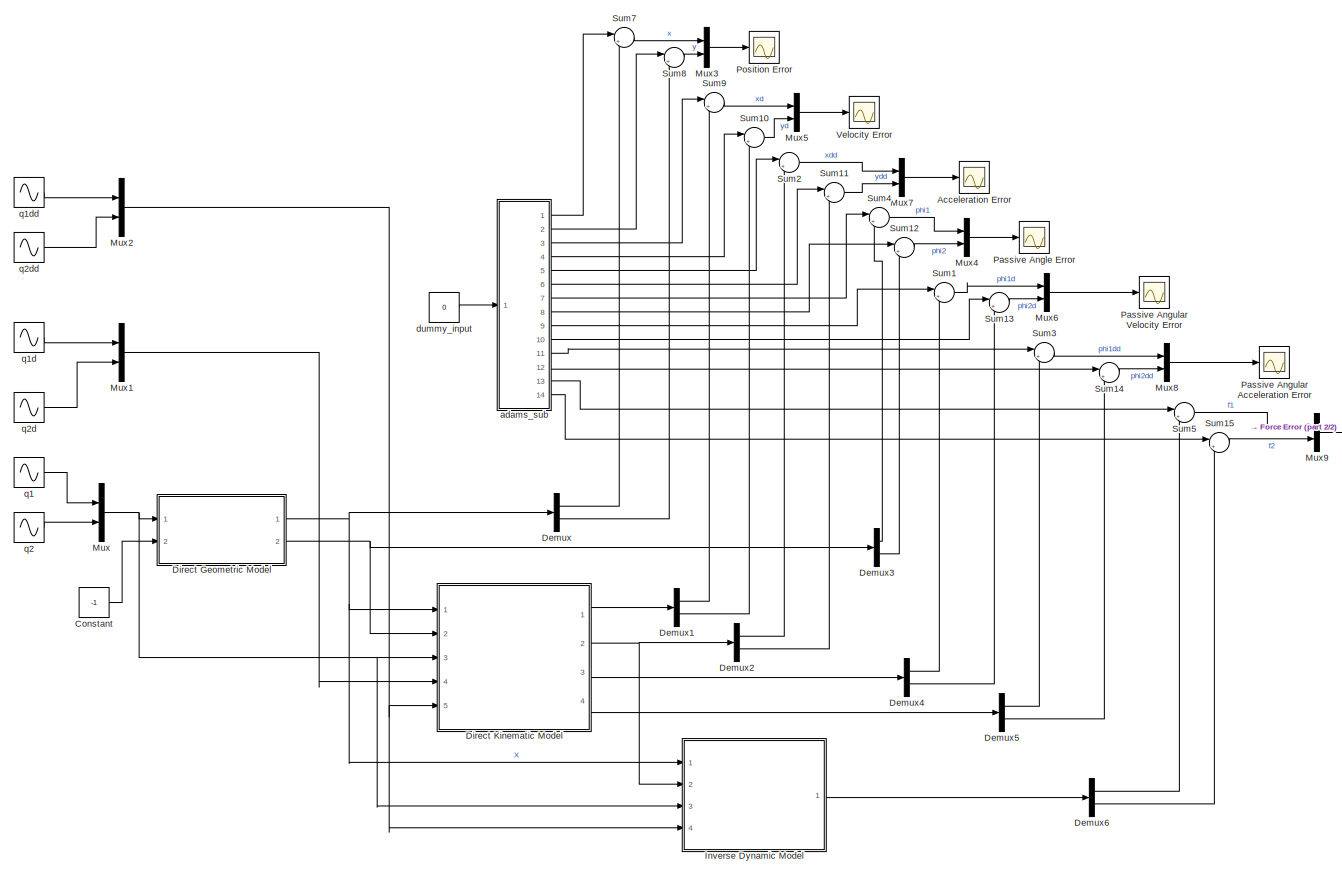
[diagram: root canvas - part 1/2, most of the canvas]
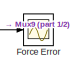
[diagram: root canvas - part 2/2, middle right region]
MODEL slx_ea97dbc30092
KIND model
CONFIG AbsTol = auto
CONFIG EnableMultiTasking = off
CONFIG FixedStep = auto
CONFIG MaxStep = auto
CONFIG MinStep = auto
CONFIG RelTol = 1e-3
CONFIG SampleTimeConstraint = Unconstrained
CONFIG Solver = VariableStepAuto
CONFIG SolverName = VariableStepAuto
CONFIG StartTime = 0.0
CONFIG StopTime = 3
BLOCK [Scope] Acceleration Error
  Floating = off
  NumInputPorts = 1
  Ports = [1]
  ScopeSpecificationString = Simulink.scopes.TimeScopeBlockCfg('CurrentConfiguration', extmgr.ConfigurationSet(extmgr.Configuration('Core','General UI',true),extmgr.Configuration('Core','Source UI',true),extmgr.Configuration('Sources','WiredSimulink',true,'DataLoggingVariableName','ScopeData9'),extmgr.Configuration('Visuals','Time Domain',true,'SerializedDisplays',{struct('MinYLimReal','-0.01587','MaxYLimReal','0.1428','YLabe...<+1544ch>
BLOCK [Constant] Constant
  Value = -1
BLOCK [Demux] Demux
  DisplayOption = bar
  Outputs = 2
  Ports = [1, 2]
BLOCK [Demux] Demux1
  DisplayOption = bar
  Outputs = 2
  Ports = [1, 2]
BLOCK [Demux] Demux2
  DisplayOption = bar
  Outputs = 2
  Ports = [1, 2]
BLOCK [Demux] Demux3
  DisplayOption = bar
  Outputs = 2
  Ports = [1, 2]
BLOCK [Demux] Demux4
  DisplayOption = bar
  Outputs = 2
  Ports = [1, 2]
BLOCK [Demux] Demux5
  DisplayOption = bar
  Outputs = 2
  Ports = [1, 2]
BLOCK [Demux] Demux6
  DisplayOption = bar
  Outputs = 2
  Ports = [1, 2]
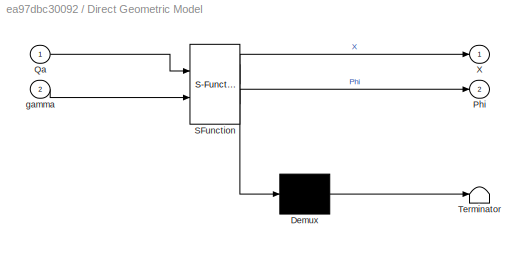
BLOCK [SubSystem] Direct Geometric Model
  ErrorFcn = Stateflow.Translate.translate
  PermitHierarchicalResolution = ExplicitOnly
  Ports = [2, 2]
  RequestExecContextInheritance = off
  SFBlockType = MATLAB Function
  TreatAsAtomicUnit = on
BLOCK [Demux] Direct Geometric Model/ Demux 
  Outputs = 1
  Ports = [1, 1]
BLOCK [S-Function] Direct Geometric Model/ SFunction 
  EnableBusSupport = on
  FunctionName = sf_sfun
  PortCounts = [2 3]
  Ports = [2, 3]
  SFcnIsStateOwnerBlock = off
  SFunctionDeploymentMode = off
  Tag = Stateflow S-Function 2
BLOCK [Terminator] Direct Geometric Model/ Terminator 
BLOCK [Outport] Direct Geometric Model/Phi
  IconDisplay = Port number
  Port = 2
  VectorParamsAs1DForOutWhenUnconnected = off
BLOCK [Inport] Direct Geometric Model/Qa
  IconDisplay = Port number
BLOCK [Outport] Direct Geometric Model/X
  IconDisplay = Port number
  VectorParamsAs1DForOutWhenUnconnected = off
BLOCK [Inport] Direct Geometric Model/gamma
  IconDisplay = Port number
  Port = 2
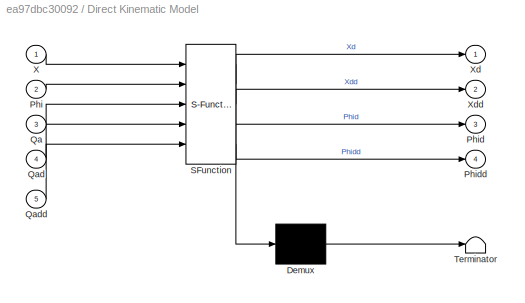
BLOCK [SubSystem] Direct Kinematic Model
  ErrorFcn = Stateflow.Translate.translate
  PermitHierarchicalResolution = ExplicitOnly
  Ports = [5, 4]
  RequestExecContextInheritance = off
  SFBlockType = MATLAB Function
  TreatAsAtomicUnit = on
BLOCK [Demux] Direct Kinematic Model/ Demux 
  Outputs = 1
  Ports = [1, 1]
BLOCK [S-Function] Direct Kinematic Model/ SFunction 
  EnableBusSupport = on
  FunctionName = sf_sfun
  PortCounts = [5 5]
  Ports = [5, 5]
  SFcnIsStateOwnerBlock = off
  SFunctionDeploymentMode = off
  Tag = Stateflow S-Function 1
BLOCK [Terminator] Direct Kinematic Model/ Terminator 
BLOCK [Inport] Direct Kinematic Model/Phi
  IconDisplay = Port number
  Port = 2
BLOCK [Outport] Direct Kinematic Model/Phid
  IconDisplay = Port number
  Port = 3
  VectorParamsAs1DForOutWhenUnconnected = off
BLOCK [Outport] Direct Kinematic Model/Phidd
  IconDisplay = Port number
  Port = 4
  VectorParamsAs1DForOutWhenUnconnected = off
BLOCK [Inport] Direct Kinematic Model/Qa
  IconDisplay = Port number
  Port = 3
BLOCK [Inport] Direct Kinematic Model/Qad
  IconDisplay = Port number
  Port = 4
BLOCK [Inport] Direct Kinematic Model/Qadd
  IconDisplay = Port number
  Port = 5
BLOCK [Inport] Direct Kinematic Model/X
  IconDisplay = Port number
BLOCK [Outport] Direct Kinematic Model/Xd
  IconDisplay = Port number
  VectorParamsAs1DForOutWhenUnconnected = off
BLOCK [Outport] Direct Kinematic Model/Xdd
  IconDisplay = Port number
  Port = 2
  VectorParamsAs1DForOutWhenUnconnected = off
BLOCK [Scope] Force Error
  Floating = off
  NumInputPorts = 1
  Ports = [1]
  ScopeSpecificationString = Simulink.scopes.TimeScopeBlockCfg('CurrentConfiguration', extmgr.ConfigurationSet(extmgr.Configuration('Core','General UI',true),extmgr.Configuration('Core','Source UI',true),extmgr.Configuration('Sources','WiredSimulink',true),extmgr.Configuration('Visuals','Time Domain',true,'SerializedDisplays',{struct('MinYLimReal','-0.00011','MaxYLimReal','0.0001','YLabelReal','Force (N)','MinYLimMag','0.0000...<+1467ch>
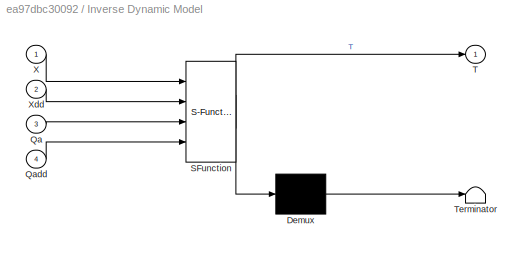
BLOCK [SubSystem] Inverse Dynamic Model
  ErrorFcn = Stateflow.Translate.translate
  PermitHierarchicalResolution = ExplicitOnly
  Ports = [4, 1]
  RequestExecContextInheritance = off
  SFBlockType = MATLAB Function
  TreatAsAtomicUnit = on
BLOCK [Demux] Inverse Dynamic Model/ Demux 
  Outputs = 1
  Ports = [1, 1]
BLOCK [S-Function] Inverse Dynamic Model/ SFunction 
  EnableBusSupport = on
  FunctionName = sf_sfun
  PortCounts = [4 2]
  Ports = [4, 2]
  SFcnIsStateOwnerBlock = off
  SFunctionDeploymentMode = off
  Tag = Stateflow S-Function 3
BLOCK [Terminator] Inverse Dynamic Model/ Terminator 
BLOCK [Inport] Inverse Dynamic Model/Qa
  IconDisplay = Port number
  Port = 3
BLOCK [Inport] Inverse Dynamic Model/Qadd
  IconDisplay = Port number
  Port = 4
BLOCK [Outport] Inverse Dynamic Model/T
  IconDisplay = Port number
BLOCK [Inport] Inverse Dynamic Model/X
  IconDisplay = Port number
BLOCK [Inport] Inverse Dynamic Model/Xdd
  IconDisplay = Port number
  Port = 2
BLOCK [Mux] Mux
  DisplayOption = bar
  Inputs = 2
  Ports = [2, 1]
BLOCK [Mux] Mux1
  DisplayOption = bar
  Inputs = 2
  Ports = [2, 1]
BLOCK [Mux] Mux2
  DisplayOption = bar
  Inputs = 2
  Ports = [2, 1]
BLOCK [Mux] Mux3
  DisplayOption = bar
  Inputs = 2
  Ports = [2, 1]
BLOCK [Mux] Mux4
  DisplayOption = bar
  Inputs = 2
  Ports = [2, 1]
BLOCK [Mux] Mux5
  DisplayOption = bar
  Inputs = 2
  Ports = [2, 1]
BLOCK [Mux] Mux6
  DisplayOption = bar
  Inputs = 2
  Ports = [2, 1]
BLOCK [Mux] Mux7
  DisplayOption = bar
  Inputs = 2
  Ports = [2, 1]
BLOCK [Mux] Mux8
  DisplayOption = bar
  Inputs = 2
  Ports = [2, 1]
BLOCK [Mux] Mux9
  DisplayOption = bar
  Inputs = 2
  Ports = [2, 1]
BLOCK [Scope] Passive Angle Error
  Floating = off
  NumInputPorts = 1
  Ports = [1]
  ScopeSpecificationString = Simulink.scopes.TimeScopeBlockCfg('CurrentConfiguration', extmgr.ConfigurationSet(extmgr.Configuration('Core','General UI',true),extmgr.Configuration('Core','Source UI',true),extmgr.Configuration('Sources','WiredSimulink',true,'DataLoggingVariableName','ScopeData16'),extmgr.Configuration('Visuals','Time Domain',true,'SerializedDisplays',{struct('MinYLimReal','-0.00012','MaxYLimReal','0.00012','YLa...<+1533ch>
BLOCK [Scope] Passive Angular Acceleration Error
  Floating = off
  NumInputPorts = 1
  Ports = [1]
  ScopeSpecificationString = Simulink.scopes.TimeScopeBlockCfg('CurrentConfiguration', extmgr.ConfigurationSet(extmgr.Configuration('Core','General UI',true),extmgr.Configuration('Core','Source UI',true),extmgr.Configuration('Sources','WiredSimulink',true,'DataLoggingVariableName','ScopeData12'),extmgr.Configuration('Visuals','Time Domain',true,'SerializedDisplays',{struct('MinYLimReal','-0.00004','MaxYLimReal','0.00004','YLa...<+1607ch>
BLOCK [Scope] Passive Angular Velocity Error
  Floating = off
  NumInputPorts = 1
  Ports = [1]
  ScopeSpecificationString = Simulink.scopes.TimeScopeBlockCfg('CurrentConfiguration', extmgr.ConfigurationSet(extmgr.Configuration('Core','General UI',true),extmgr.Configuration('Core','Source UI',true),extmgr.Configuration('Sources','WiredSimulink',true,'DataLoggingVariableName','ScopeData6'),extmgr.Configuration('Visuals','Time Domain',true,'SerializedDisplays',{struct('MinYLimReal','-0.000019','MaxYLimReal','0.000019','YL...<+1578ch>
BLOCK [Scope] Position Error
  Floating = off
  NumInputPorts = 1
  Ports = [1]
  ScopeSpecificationString = Simulink.scopes.TimeScopeBlockCfg('CurrentConfiguration', extmgr.ConfigurationSet(extmgr.Configuration('Core','General UI',true),extmgr.Configuration('Core','Source UI',true),extmgr.Configuration('Sources','WiredSimulink',true,'DataLoggingVariableName','ScopeData15'),extmgr.Configuration('Visuals','Time Domain',true,'TimeAxisLabels','All','SerializedDisplays',{struct('MinYLimReal','-0.06877','MaxY...<+1589ch>
BLOCK [Sum] Sum1
  IconShape = round
  InputSameDT = off
  Inputs = |+-
  OutDataTypeStr = Inherit: Inherit via internal rule
  Ports = [2, 1]
  SaturateOnIntegerOverflow = off
BLOCK [Sum] Sum10
  IconShape = round
  InputSameDT = off
  Inputs = |+-
  OutDataTypeStr = Inherit: Inherit via internal rule
  Ports = [2, 1]
  SaturateOnIntegerOverflow = off
BLOCK [Sum] Sum11
  IconShape = round
  InputSameDT = off
  Inputs = |+-
  OutDataTypeStr = Inherit: Inherit via internal rule
  Ports = [2, 1]
  SaturateOnIntegerOverflow = off
BLOCK [Sum] Sum12
  IconShape = round
  InputSameDT = off
  Inputs = |+-
  OutDataTypeStr = Inherit: Inherit via internal rule
  Ports = [2, 1]
  SaturateOnIntegerOverflow = off
BLOCK [Sum] Sum13
  IconShape = round
  InputSameDT = off
  Inputs = |+-
  OutDataTypeStr = Inherit: Inherit via internal rule
  Ports = [2, 1]
  SaturateOnIntegerOverflow = off
BLOCK [Sum] Sum14
  IconShape = round
  InputSameDT = off
  Inputs = |+-
  OutDataTypeStr = Inherit: Inherit via internal rule
  Ports = [2, 1]
  SaturateOnIntegerOverflow = off
BLOCK [Sum] Sum15
  IconShape = round
  InputSameDT = off
  Inputs = |+-
  OutDataTypeStr = Inherit: Inherit via internal rule
  Ports = [2, 1]
  SaturateOnIntegerOverflow = off
BLOCK [Sum] Sum2
  IconShape = round
  InputSameDT = off
  Inputs = |+-
  OutDataTypeStr = Inherit: Inherit via internal rule
  Ports = [2, 1]
  SaturateOnIntegerOverflow = off
BLOCK [Sum] Sum3
  IconShape = round
  InputSameDT = off
  Inputs = |+-
  OutDataTypeStr = Inherit: Inherit via internal rule
  Ports = [2, 1]
  SaturateOnIntegerOverflow = off
BLOCK [Sum] Sum4
  IconShape = round
  InputSameDT = off
  Inputs = |+-
  OutDataTypeStr = Inherit: Inherit via internal rule
  Ports = [2, 1]
  SaturateOnIntegerOverflow = off
BLOCK [Sum] Sum5
  IconShape = round
  InputSameDT = off
  Inputs = |+-
  OutDataTypeStr = Inherit: Inherit via internal rule
  Ports = [2, 1]
  SaturateOnIntegerOverflow = off
BLOCK [Sum] Sum7
  IconShape = round
  InputSameDT = off
  Inputs = |+-
  OutDataTypeStr = Inherit: Inherit via internal rule
  Ports = [2, 1]
  SaturateOnIntegerOverflow = off
BLOCK [Sum] Sum8
  IconShape = round
  InputSameDT = off
  Inputs = |+-
  OutDataTypeStr = Inherit: Inherit via internal rule
  Ports = [2, 1]
  SaturateOnIntegerOverflow = off
BLOCK [Sum] Sum9
  IconShape = round
  InputSameDT = off
  Inputs = |+-
  OutDataTypeStr = Inherit: Inherit via internal rule
  Ports = [2, 1]
  SaturateOnIntegerOverflow = off
BLOCK [Scope] Velocity Error
  Floating = off
  NumInputPorts = 1
  Ports = [1]
  ScopeSpecificationString = Simulink.scopes.TimeScopeBlockCfg('CurrentConfiguration', extmgr.ConfigurationSet(extmgr.Configuration('Core','General UI',true),extmgr.Configuration('Core','Source UI',true),extmgr.Configuration('Sources','WiredSimulink',true,'DataLoggingVariableName','ScopeData3'),extmgr.Configuration('Visuals','Time Domain',true,'TimeAxisLabels','All','SerializedDisplays',{struct('MinYLimReal','-0.000034','MaxY...<+1555ch>
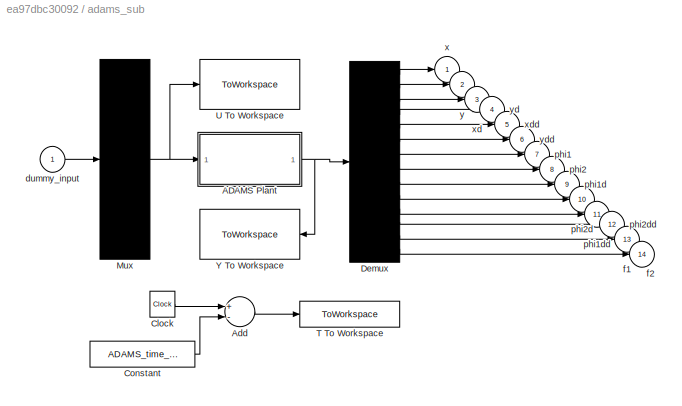
BLOCK [SubSystem] adams_sub
  Ports = [1, 14]
  RequestExecContextInheritance = off
  ShowPortLabels = none
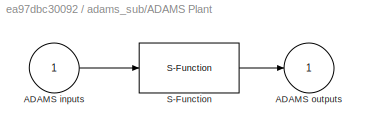
BLOCK [SubSystem] adams_sub/ADAMS Plant
  InitFcn = clear mex
  LoadFcn = %check based on dialog box setting for when setting by popup menu                                             \nif exist('ADAMS_solver_type')                                                                                 \n  if strcmp(ADAMS_solver_type,'C++')                                                                          \n    set_param(gcb,'exetyp','C++');                                 ...<+4486ch>
  OpenFcn = open_system(gcb,'mask')                                                                                                                          \nif not(exist('set_some_params_states'))                                                                                                          \n                                                                                                            ...<+625ch>
  Ports = [1, 1]
  RequestExecContextInheritance = off
BLOCK [Inport] adams_sub/ADAMS Plant/ADAMS inputs
  IconDisplay = Port number
BLOCK [Outport] adams_sub/ADAMS Plant/ADAMS outputs
  IconDisplay = Port number
  InitialOutput = 0
BLOCK [S-Function] adams_sub/ADAMS Plant/S-Function
  EnableBusSupport = off
  FunctionName = adams_plant
  Parameters = exevie,exesol,stat,outfil,nampre,o_rate,nam_in,namout,dft,modsim,modani,dt_out,inicmd,exetyp,comtyp,ada_host, workdir,pin_interp_order,pout_extrap_order,pin_extrap_order,pout_interp_order,simulink_lead_cosim,time_offset
  Ports = [1, 1]
  SFcnIsStateOwnerBlock = off
  SFunctionDeploymentMode = off
  StopFcn = clear mex
BLOCK [Sum] adams_sub/Add
  InputSameDT = off
  Inputs = +-
  OutDataTypeStr = Inherit: Inherit via internal rule
  Ports = [2, 1]
  SaturateOnIntegerOverflow = off
BLOCK [Clock] adams_sub/Clock
BLOCK [Constant] adams_sub/Constant
  Value = ADAMS_time_offset
BLOCK [Demux] adams_sub/Demux
  Outputs = 14
  Ports = [1, 14]
BLOCK [Mux] adams_sub/Mux
  Inputs = 1
  Ports = [1, 1]
BLOCK [ToWorkspace] adams_sub/T To Workspace
  MaxDataPoints = 100000
  Ports = [1]
  VariableName = ADAMS_tout
BLOCK [ToWorkspace] adams_sub/U To Workspace
  MaxDataPoints = 100000
  Ports = [1]
  VariableName = ADAMS_uout
BLOCK [ToWorkspace] adams_sub/Y To Workspace
  MaxDataPoints = 100000
  Ports = [1]
  VariableName = ADAMS_yout
BLOCK [Inport] adams_sub/dummy_input
  IconDisplay = Port number
BLOCK [Outport] adams_sub/f1    
  IconDisplay = Port number
  Port = 13
BLOCK [Outport] adams_sub/f2    
  IconDisplay = Port number
  Port = 14
BLOCK [Outport] adams_sub/phi1  
  IconDisplay = Port number
  Port = 7
BLOCK [Outport] adams_sub/phi1d 
  IconDisplay = Port number
  Port = 9
BLOCK [Outport] adams_sub/phi1dd
  IconDisplay = Port number
  Port = 11
BLOCK [Outport] adams_sub/phi2  
  IconDisplay = Port number
  Port = 8
BLOCK [Outport] adams_sub/phi2d 
  IconDisplay = Port number
  Port = 10
BLOCK [Outport] adams_sub/phi2dd
  IconDisplay = Port number
  Port = 12
BLOCK [Outport] adams_sub/x     
  IconDisplay = Port number
BLOCK [Outport] adams_sub/xd    
  IconDisplay = Port number
  Port = 3
BLOCK [Outport] adams_sub/xdd   
  IconDisplay = Port number
  Port = 5
BLOCK [Outport] adams_sub/y     
  IconDisplay = Port number
  Port = 2
BLOCK [Outport] adams_sub/yd    
  IconDisplay = Port number
  Port = 4
BLOCK [Outport] adams_sub/ydd   
  IconDisplay = Port number
  Port = 6
BLOCK [Constant] dummy_input
  Value = 0
BLOCK [Sin] q1
  Amplitude = 0.1
  Ports = [0, 1]
  SampleTime = 0
BLOCK [Sin] q1d
  Amplitude = 0.1
  Phase = +pi/2
  Ports = [0, 1]
  SampleTime = 0
BLOCK [Sin] q1dd
  Amplitude = 0.1
  Phase = +pi
  Ports = [0, 1]
  SampleTime = 0
BLOCK [Sin] q2
  Amplitude = -0.1
  Ports = [0, 1]
  SampleTime = 0
BLOCK [Sin] q2d
  Amplitude = -0.1
  Phase = pi/2
  Ports = [0, 1]
  SampleTime = 0
BLOCK [Sin] q2dd
  Amplitude = -0.1
  Phase = +pi
  Ports = [0, 1]
  SampleTime = 0
LINE Constant:1 -> Direct Geometric Model:2
LINE Demux1:1 -> Sum9:2
LINE Demux1:2 -> Sum10:2
LINE Demux2:1 -> Sum2:2
LINE Demux2:2 -> Sum11:2
LINE Demux3:1 -> Sum4:2
LINE Demux3:2 -> Sum12:2
LINE Demux4:1 -> Sum1:2
LINE Demux4:2 -> Sum13:2
LINE Demux5:1 -> Sum3:2
LINE Demux5:2 -> Sum14:2
LINE Demux6:1 -> Sum5:2
LINE Demux6:2 -> Sum15:2
LINE Demux:1 -> Sum7:2
LINE Demux:2 -> Sum8:2
NET Direct Geometric Model:1 -> Demux:1, Direct Kinematic Model:1, Inverse Dynamic Model:1
NET Direct Geometric Model:2 -> Demux3:1, Direct Kinematic Model:2
LINE Direct Kinematic Model:1 -> Demux1:1
NET Direct Kinematic Model:2 -> Demux2:1, Inverse Dynamic Model:2
LINE Direct Kinematic Model:3 -> Demux4:1
LINE Direct Kinematic Model:4 -> Demux5:1
LINE Inverse Dynamic Model:1 -> Demux6:1
LINE Mux1:1 -> Direct Kinematic Model:4
NET Mux2:1 -> Direct Kinematic Model:5, Inverse Dynamic Model:4
LINE Mux3:1 -> Position Error:1
LINE Mux4:1 -> Passive Angle Error:1
LINE Mux5:1 -> Velocity Error:1
LINE Mux6:1 -> Passive Angular Velocity Error:1
LINE Mux7:1 -> Acceleration Error:1
LINE Mux8:1 -> Passive Angular Acceleration Error:1
LINE Mux9:1 -> Force Error:1
NET Mux:1 -> Direct Geometric Model:1, Direct Kinematic Model:3, Inverse Dynamic Model:3
LINE Sum10:1 -> Mux5:2
LINE Sum11:1 -> Mux7:2
LINE Sum12:1 -> Mux4:2
LINE Sum13:1 -> Mux6:2
LINE Sum14:1 -> Mux8:2
LINE Sum15:1 -> Mux9:2
LINE Sum1:1 -> Mux6:1
LINE Sum2:1 -> Mux7:1
LINE Sum3:1 -> Mux8:1
LINE Sum4:1 -> Mux4:1
LINE Sum5:1 -> Mux9:1
LINE Sum7:1 -> Mux3:1
LINE Sum8:1 -> Mux3:2
LINE Sum9:1 -> Mux5:1
LINE adams_sub/ADAMS Plant/ADAMS inputs:1 -> adams_sub/ADAMS Plant/S-Function:1
LINE adams_sub/ADAMS Plant/S-Function:1 -> adams_sub/ADAMS Plant/ADAMS outputs:1
NET adams_sub/ADAMS Plant:1 -> adams_sub/Demux:1, adams_sub/Y To Workspace:1
LINE adams_sub/Add:1 -> adams_sub/T To Workspace:1
LINE adams_sub/Clock:1 -> adams_sub/Add:1
LINE adams_sub/Constant:1 -> adams_sub/Add:2
LINE adams_sub/Demux:1 -> adams_sub/x     :1
LINE adams_sub/Demux:10 -> adams_sub/phi2d :1
LINE adams_sub/Demux:11 -> adams_sub/phi1dd:1
LINE adams_sub/Demux:12 -> adams_sub/phi2dd:1
LINE adams_sub/Demux:13 -> adams_sub/f1    :1
LINE adams_sub/Demux:14 -> adams_sub/f2    :1
LINE adams_sub/Demux:2 -> adams_sub/y     :1
LINE adams_sub/Demux:3 -> adams_sub/xd    :1
LINE adams_sub/Demux:4 -> adams_sub/yd    :1
LINE adams_sub/Demux:5 -> adams_sub/xdd   :1
LINE adams_sub/Demux:6 -> adams_sub/ydd   :1
LINE adams_sub/Demux:7 -> adams_sub/phi1  :1
LINE adams_sub/Demux:8 -> adams_sub/phi2  :1
LINE adams_sub/Demux:9 -> adams_sub/phi1d :1
NET adams_sub/Mux:1 -> adams_sub/ADAMS Plant:1, adams_sub/U To Workspace:1
LINE adams_sub/dummy_input:1 -> adams_sub/Mux:1
LINE adams_sub:1 -> Sum7:1
LINE adams_sub:10 -> Sum13:1
LINE adams_sub:11 -> Sum3:1
LINE adams_sub:12 -> Sum14:1
LINE adams_sub:13 -> Sum5:1
LINE adams_sub:14 -> Sum15:1
LINE adams_sub:2 -> Sum8:1
LINE adams_sub:3 -> Sum9:1
LINE adams_sub:4 -> Sum10:1
LINE adams_sub:5 -> Sum2:1
LINE adams_sub:6 -> Sum11:1
LINE adams_sub:7 -> Sum4:1
LINE adams_sub:8 -> Sum12:1
LINE adams_sub:9 -> Sum1:1
LINE dummy_input:1 -> adams_sub:1
LINE q1:1 -> Mux:1
LINE q1d:1 -> Mux1:1
LINE q1dd:1 -> Mux2:1
LINE q2:1 -> Mux:2
LINE q2d:1 -> Mux1:2
LINE q2dd:1 -> Mux2:2
note: NET lines group one-source signal fan-out (src -> all destinations, sorted); 1:1 wires keep LINE
CHART Direct Kinematic Model states=1 transitions=1
  STATE_LABEL 'eML_blk_kernel()'
  STATE_LABEL 'SCRIPT:\nfunction [Xd, Xdd, Phid, Phidd]  = DKM(X,Phi,Qa,Qad,Qadd)\n    \n    %% Geometric parameters\n    d= 0.4;\n    l= 0.3606;\n    \n    % Extracting Parameters\n    x = X(1);\n    y = X(2);\n    phi1 = Phi(1);\n    phi2 = Phi(2);\n    q1 = Qa(1);\n    q2 = Qa(2);\n    q1d = Qad(1);\n    q2d = Qad(2);\n    \n    %% First derivative of X (Xd)\n    A = 2*[(x+d/2) (y-q1); (x-d/2) (y-q2)];\n    B = -2*[(y-q1) 0; 0 ...<+667ch>'
CHART Direct Geometric Model states=1 transitions=1
  STATE_LABEL 'eML_blk_kernel()'
  STATE_LABEL 'SCRIPT:\nfunction [X, Phi] = DGM(Qa,gamma)\n    \n    % Geometric parameters\n    d = 0.4;\n    l = 0.3606;\n    \n    q1 = Qa(1);\n    q2 = Qa(2);\n    \n    % Segments\n    OA = [d/2; q2];\n    AM = [-d; q1-q2]/2;\n    MC = gamma * sqrt((4*l^2 - d^2 -(q1-q2)^2)/(d^2 + (q1-q2)^2)) * [0 -1; 1 0] * AM;\n    \n    X= OA + AM + MC;\n    \n    x=X(1);\n    y=X(2);\n    \n    % Passive Angles\n    Phi= [atan2(y-q1,x+d/2); ...<+23ch>'
CHART Inverse Dynamic Model states=1 transitions=1
  STATE_LABEL 'eML_blk_kernel()'
  STATE_LABEL 'SCRIPT:\nfunction T = IDM(X, Xdd, Qa, Qadd)\n\n%% Geometric and Dynamic variables\nd = 0.4;\nmp = 3;\nmf = 1;\n\n%Extracting variables from inputs\nq1 = Qa(1);\nq2 = Qa(2);\nq1dd = Qadd(1);\nq2dd = Qadd(2);\nx = X(1);\ny = X(2);\nxdd = Xdd(1);\nydd = Xdd(2);\n\n%% Calculating the Jacobian\nA = 2*[(x + d/2) (y - q1) ; (x - d/2) (y - q2)];\nB = -2*[(y - q1) 0 ; 0 (y-q2)]; \n\nJ = -A\\B;\n\n%% Calculate Torque based off equa...<+76ch>'
